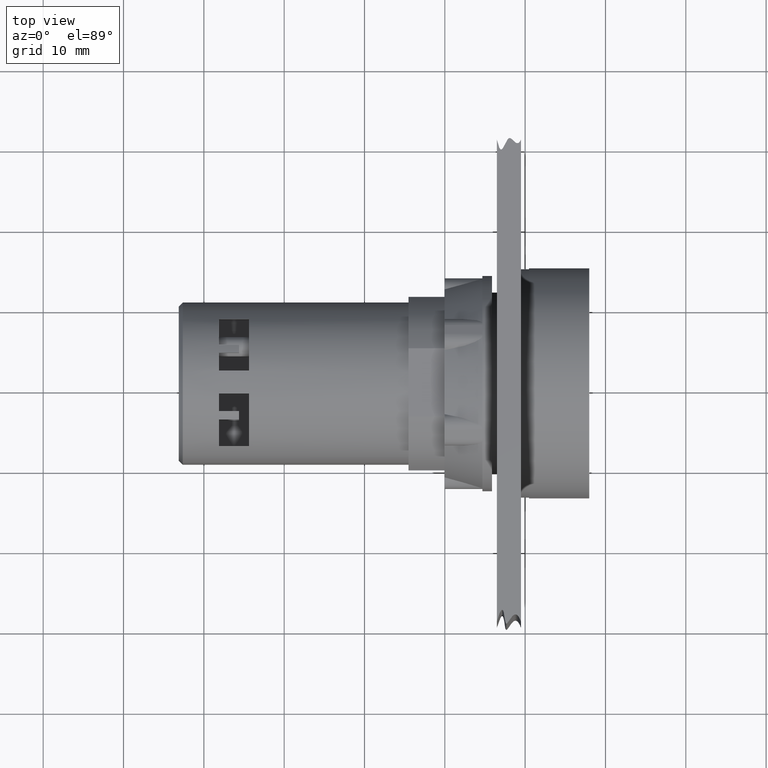
[diagram: clean part render]
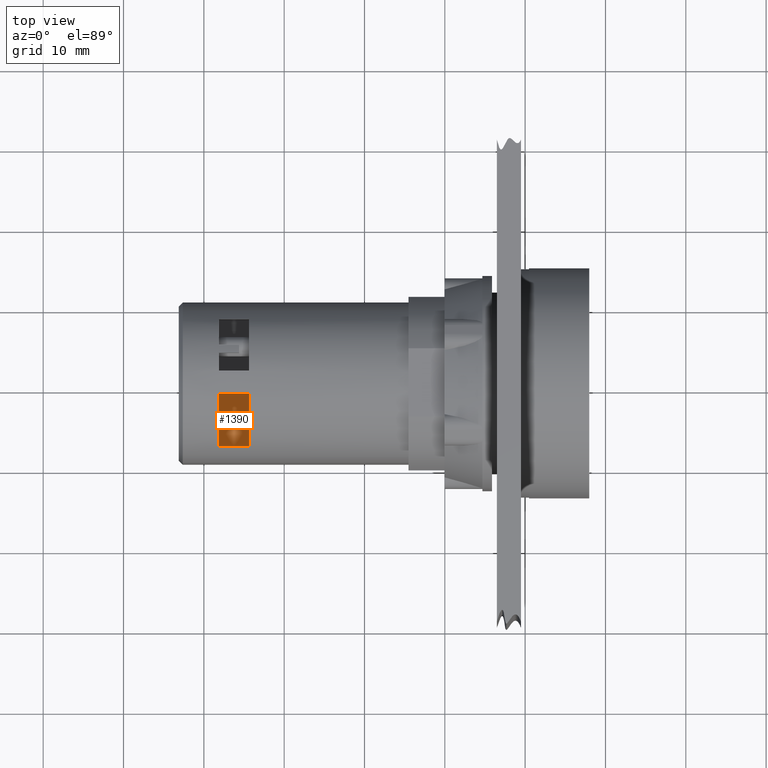
[diagram: same view with one face highlighted and labeled with its STEP entity id]
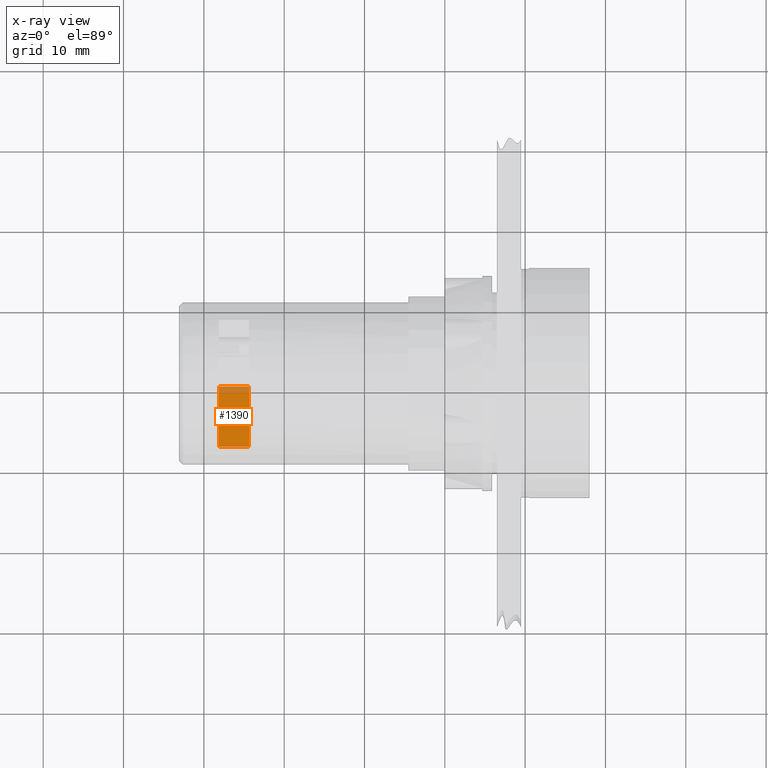
[diagram: x-ray of the same camera — body ghosted, the highlighted face saturated]
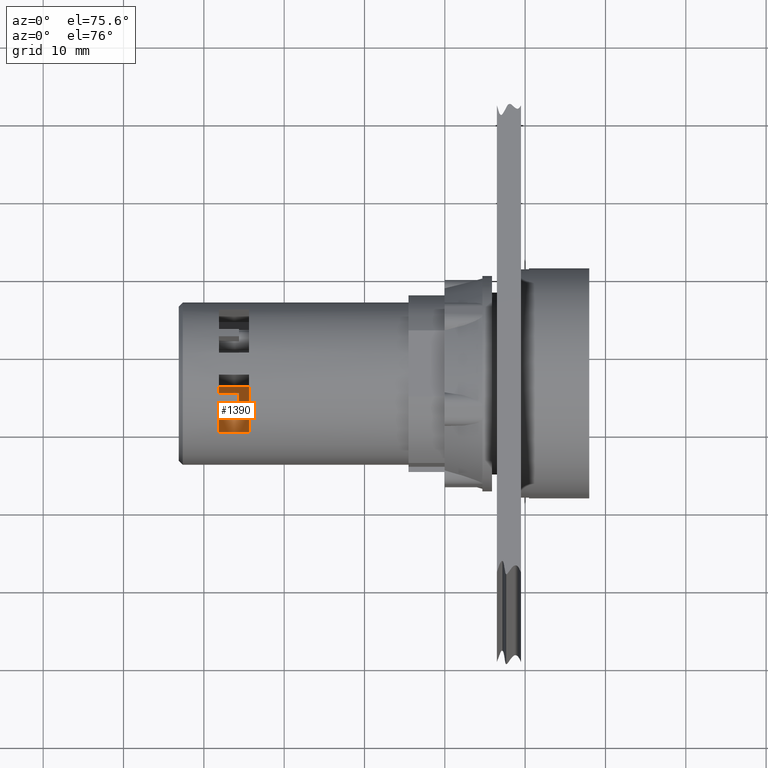
[diagram: same view with one face highlighted and labeled with its STEP entity id]
A machine part, top view. The second image highlights one B-rep face of the part: STEP entity #1390.
The next image is the same camera in x-ray: the body ghosted, the highlighted face saturated — about 13% of this face is hidden behind the body in this view.
A second angle (auxiliary view) of the same face is appended — the face is thin or edge-on in the first view.
In plain terms, the highlighted planar face has unit normal (0, 0, 1).
Its self-contained STEP definition (entity closure, byte-faithful):
#1077=CARTESIAN_POINT('',(-38.122597079042571,-2.870817261852107,1.876578E-015));
#1078=VERTEX_POINT('',#1077);
#1085=CARTESIAN_POINT('',(-38.122597079042571,0.379182738147893,7.246570E-017));
#1086=VERTEX_POINT('',#1085);
#1087=CARTESIAN_POINT('',(-38.122597079042571,0.379182738147893,7.246570E-017));
#1088=DIRECTION('',(0.0,-1.0,0.0));
#1089=VECTOR('',#1088,3.250000000000000);
#1090=LINE('',#1087,#1089);
#1091=EDGE_CURVE('',#1086,#1078,#1090,.T.);
#1175=CARTESIAN_POINT('',(-38.122597079042578,-7.120817261852107,4.235802E-015));
#1176=VERTEX_POINT('',#1175);
#1183=CARTESIAN_POINT('',(-38.122597079042578,-3.870817261852106,2.431690E-015));
#1184=VERTEX_POINT('',#1183);
#1185=CARTESIAN_POINT('',(-38.122597079042578,-3.870817261852106,2.431690E-015));
#1186=DIRECTION('',(0.0,-1.0,0.0));
#1187=VECTOR('',#1186,3.250000000000000);
#1188=LINE('',#1185,#1187);
#1189=EDGE_CURVE('',#1184,#1176,#1188,.T.);
#1214=CARTESIAN_POINT('',(-35.622597079042578,-3.870817261852108,2.431690E-015));
#1215=VERTEX_POINT('',#1214);
#1216=CARTESIAN_POINT('',(-35.622597079042578,-3.870817261852108,2.431690E-015));
#1217=DIRECTION('',(-1.0,0.0,0.0));
#1218=VECTOR('',#1217,2.500000000000000);
#1219=LINE('',#1216,#1218);
#1220=EDGE_CURVE('',#1215,#1184,#1219,.T.);
#1246=CARTESIAN_POINT('',(-35.622597079042578,-2.870817261852108,1.876578E-015));
#1247=VERTEX_POINT('',#1246);
#1248=CARTESIAN_POINT('',(-35.622597079042578,-2.870817261852108,1.876578E-015));
#1249=DIRECTION('',(0.0,-1.0,0.0));
#1250=VECTOR('',#1249,1.0);
#1251=LINE('',#1248,#1250);
#1252=EDGE_CURVE('',#1247,#1215,#1251,.T.);
#1275=CARTESIAN_POINT('',(-38.122597079042571,-2.870817261852107,1.876578E-015));
#1276=DIRECTION('',(1.0,0.0,0.0));
#1277=VECTOR('',#1276,2.499999999999993);
#1278=LINE('',#1275,#1277);
#1279=EDGE_CURVE('',#1078,#1247,#1278,.T.);
#1292=CARTESIAN_POINT('',(-34.372597079042585,0.379182738147892,7.246570E-017));
#1293=VERTEX_POINT('',#1292);
#1294=CARTESIAN_POINT('',(-34.372597079042585,0.379182738147892,7.246570E-017));
#1295=DIRECTION('',(-1.0,0.0,0.0));
#1296=VECTOR('',#1295,3.749999999999986);
#1297=LINE('',#1294,#1296);
#1298=EDGE_CURVE('',#1293,#1086,#1297,.T.);
#1325=CARTESIAN_POINT('',(-34.372597079042585,-7.120817261852109,4.235802E-015));
#1326=VERTEX_POINT('',#1325);
#1327=CARTESIAN_POINT('',(-34.372597079042585,-7.120817261852109,4.235802E-015));
#1328=DIRECTION('',(0.0,1.0,0.0));
#1329=VECTOR('',#1328,7.500000000000000);
#1330=LINE('',#1327,#1329);
#1331=EDGE_CURVE('',#1326,#1293,#1330,.T.);
#1365=CARTESIAN_POINT('',(-38.122597079042578,-7.120817261852107,4.235802E-015));
#1366=DIRECTION('',(1.0,0.0,0.0));
#1367=VECTOR('',#1366,3.749999999999993);
#1368=LINE('',#1365,#1367);
#1369=EDGE_CURVE('',#1176,#1326,#1368,.T.);
#1375=CARTESIAN_POINT('',(-36.270324351769858,-3.370817261852110,2.154134E-015));
#1376=DIRECTION('',(0.0,0.0,1.0));
#1377=DIRECTION('',(1.0,0.0,0.0));
#1378=AXIS2_PLACEMENT_3D('',#1375,#1376,#1377);
#1379=PLANE('',#1378);
#1380=ORIENTED_EDGE('',*,*,#1369,.T.);
#1381=ORIENTED_EDGE('',*,*,#1331,.T.);
#1382=ORIENTED_EDGE('',*,*,#1298,.T.);
#1383=ORIENTED_EDGE('',*,*,#1091,.T.);
#1384=ORIENTED_EDGE('',*,*,#1279,.T.);
#1385=ORIENTED_EDGE('',*,*,#1252,.T.);
#1386=ORIENTED_EDGE('',*,*,#1220,.T.);
#1387=ORIENTED_EDGE('',*,*,#1189,.T.);
#1388=EDGE_LOOP('',(#1380,#1381,#1382,#1383,#1384,#1385,#1386,#1387));
#1389=FACE_OUTER_BOUND('',#1388,.T.);
#1390=ADVANCED_FACE('',(#1389),#1379,.T.);